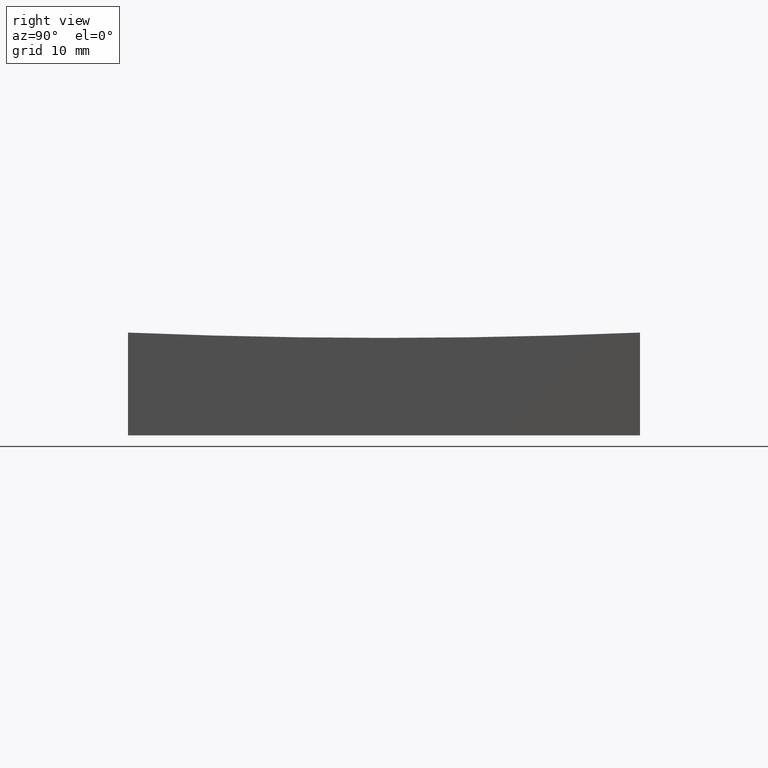
[diagram: clean part render]
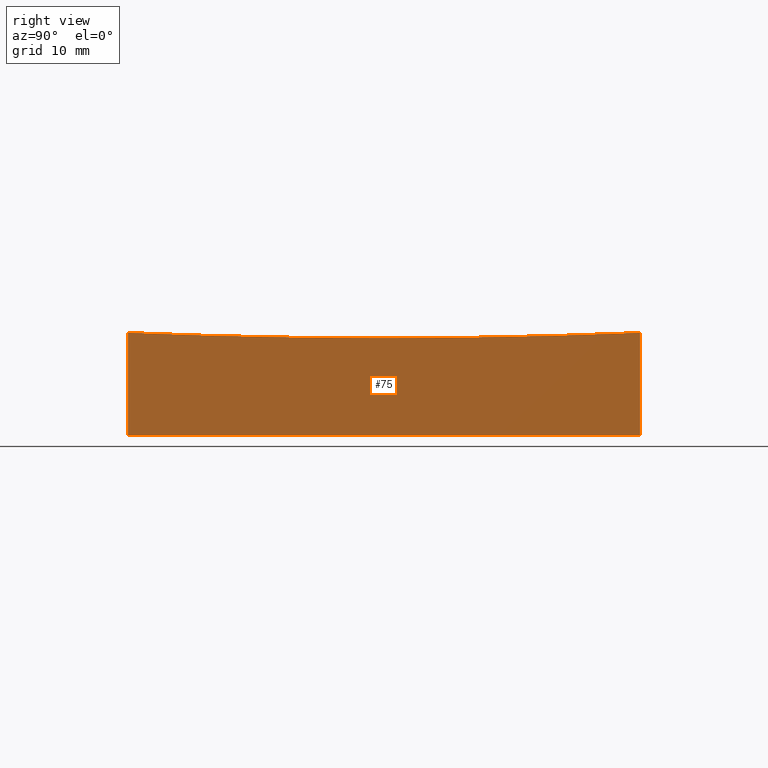
[diagram: same view with one face highlighted and labeled with its STEP entity id]
A machine part, right view. The second image highlights one B-rep face of the part: STEP entity #75.
In plain terms, the highlighted planar face has unit normal (1, 0, -0).
Its self-contained STEP definition (entity closure, byte-faithful):
#3 = CARTESIAN_POINT ( 'NONE',  ( 24.99999999999999645, 24.99999999999999645, 50.00000000000000000 ) ) ;
#4 = DIRECTION ( 'NONE',  ( -6.944925103571634921E-17, 1.000000000000000000, 0.0000000000000000000 ) ) ;
#14 = DIRECTION ( 'NONE',  ( -0.0000000000000000000, -0.0000000000000000000, -1.000000000000000000 ) ) ;
#21 = EDGE_CURVE ( 'NONE', #231, #248, #79, .T. ) ;
#31 = CARTESIAN_POINT ( 'NONE',  ( 25.00000000000000000, -25.00000000000000711, 10.04257246445305896 ) ) ;
#37 = DIRECTION ( 'NONE',  ( 1.000000000000000000, 6.938893903907228378E-17, -0.0000000000000000000 ) ) ;
#39 = EDGE_LOOP ( 'NONE', ( #212, #55, #49, #168, #146 ) ) ;
#46 = DIRECTION ( 'NONE',  ( 6.938893903907228378E-17, -1.000000000000000000, 0.0000000000000000000 ) ) ;
#47 = DIRECTION ( 'NONE',  ( -6.938893903907228378E-17, 1.000000000000000000, 0.0000000000000000000 ) ) ;
#49 = ORIENTED_EDGE ( 'NONE', *, *, #57, .F. ) ;
#50 = CARTESIAN_POINT ( 'NONE',  ( 24.99999999999999645, 24.99999999999999645, 50.00000000000000000 ) ) ;
#55 = ORIENTED_EDGE ( 'NONE', *, *, #154, .T. ) ;
#57 = EDGE_CURVE ( 'NONE', #211, #91, #186, .T. ) ;
#60 = CARTESIAN_POINT ( 'NONE',  ( 24.99999999999999645, 24.99999999999999645, 10.04257246445305896 ) ) ;
#62 = CIRCLE ( 'NONE', #205, 599.4789404140898341 ) ;
#72 = PLANE ( 'NONE',  #216 ) ;
#75 = ADVANCED_FACE ( 'NONE', ( #144 ), #72, .T. ) ;
#79 = CIRCLE ( 'NONE', #143, 599.4789404140898341 ) ;
#81 = DIRECTION ( 'NONE',  ( -6.944925103571634921E-17, 1.000000000000000000, 0.0000000000000000000 ) ) ;
#83 = VECTOR ( 'NONE', #14, 1000.000000000000000 ) ;
#89 = CARTESIAN_POINT ( 'NONE',  ( 25.00000000000000000, -25.00000000000000711, 0.0000000000000000000 ) ) ;
#90 = LINE ( 'NONE', #230, #83 ) ;
#91 = VERTEX_POINT ( 'NONE', #89 ) ;
#93 = CARTESIAN_POINT ( 'NONE',  ( 24.99999999999999645, 1.734723475976801967E-15, 609.0000000000000000 ) ) ;
#114 = LINE ( 'NONE', #3, #213 ) ;
#140 = CARTESIAN_POINT ( 'NONE',  ( 24.99999999999999645, 1.734723475976801967E-15, 609.0000000000000000 ) ) ;
#143 = AXIS2_PLACEMENT_3D ( 'NONE', #140, #242, #81 ) ;
#144 = FACE_OUTER_BOUND ( 'NONE', #39, .T. ) ;
#146 = ORIENTED_EDGE ( 'NONE', *, *, #21, .F. ) ;
#147 = CARTESIAN_POINT ( 'NONE',  ( 24.99999999999999645, 24.99999999999999645, 0.0000000000000000000 ) ) ;
#150 = DIRECTION ( 'NONE',  ( -0.0000000000000000000, -0.0000000000000000000, -1.000000000000000000 ) ) ;
#154 = EDGE_CURVE ( 'NONE', #179, #91, #90, .T. ) ;
#168 = ORIENTED_EDGE ( 'NONE', *, *, #240, .F. ) ;
#174 = CARTESIAN_POINT ( 'NONE',  ( 24.99999999999999289, 0.0000000000000000000, 9.521059585910096601 ) ) ;
#177 = VECTOR ( 'NONE', #46, 1000.000000000000000 ) ;
#179 = VERTEX_POINT ( 'NONE', #31 ) ;
#186 = LINE ( 'NONE', #147, #177 ) ;
#196 = CARTESIAN_POINT ( 'NONE',  ( 24.99999999999999645, 24.99999999999999645, 0.0000000000000000000 ) ) ;
#205 = AXIS2_PLACEMENT_3D ( 'NONE', #93, #37, #4 ) ;
#211 = VERTEX_POINT ( 'NONE', #196 ) ;
#212 = ORIENTED_EDGE ( 'NONE', *, *, #214, .F. ) ;
#213 = VECTOR ( 'NONE', #150, 1000.000000000000000 ) ;
#214 = EDGE_CURVE ( 'NONE', #179, #231, #62, .T. ) ;
#216 = AXIS2_PLACEMENT_3D ( 'NONE', #50, #246, #47 ) ;
#230 = CARTESIAN_POINT ( 'NONE',  ( 25.00000000000000000, -25.00000000000000711, 50.00000000000000000 ) ) ;
#231 = VERTEX_POINT ( 'NONE', #174 ) ;
#240 = EDGE_CURVE ( 'NONE', #248, #211, #114, .T. ) ;
#242 = DIRECTION ( 'NONE',  ( 1.000000000000000000, 6.938893903907228378E-17, -0.0000000000000000000 ) ) ;
#246 = DIRECTION ( 'NONE',  ( 1.000000000000000000, 6.938893903907228378E-17, -0.0000000000000000000 ) ) ;
#248 = VERTEX_POINT ( 'NONE', #60 ) ;